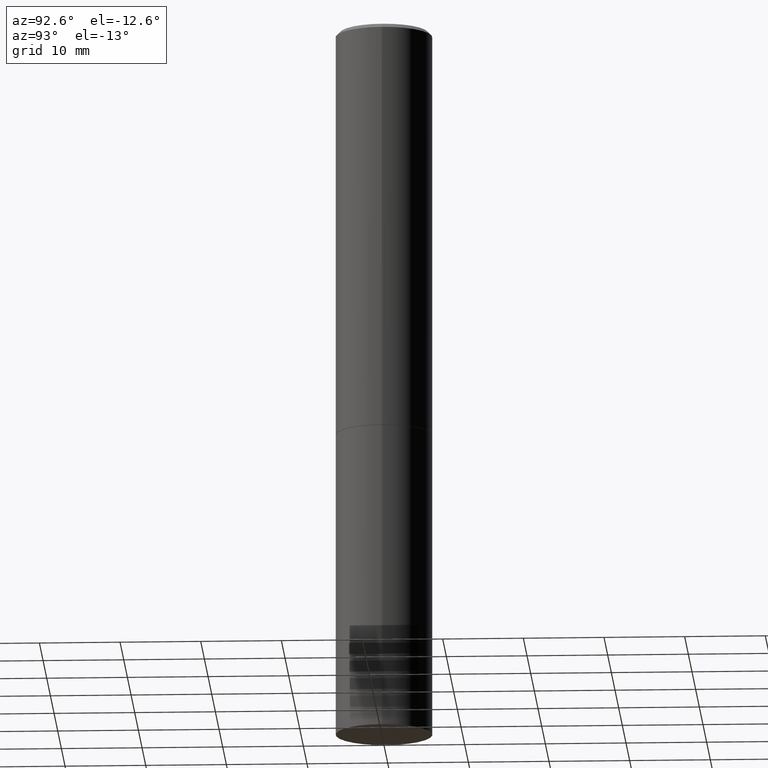
[diagram: clean part render]
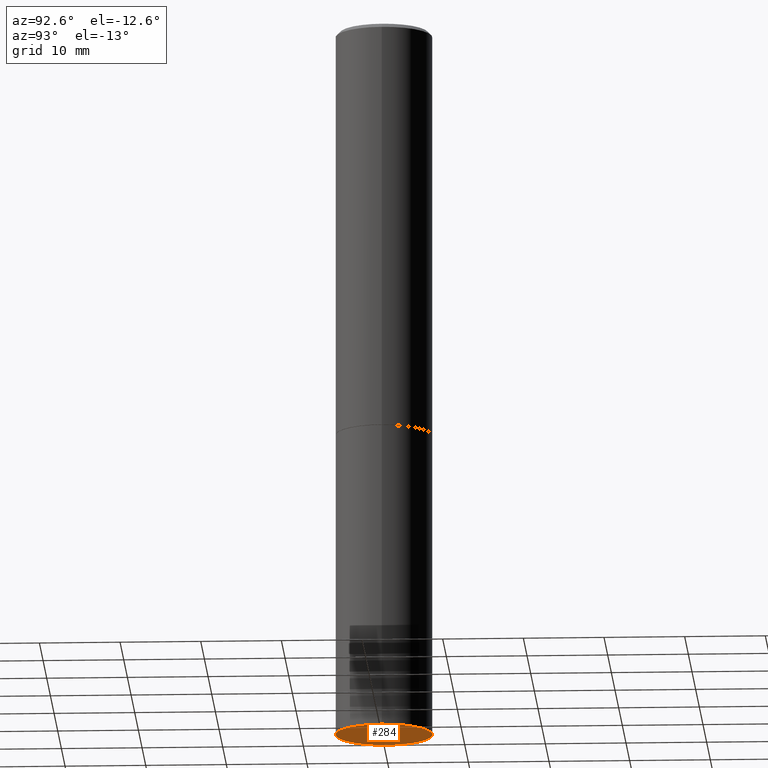
[diagram: same view with one face highlighted and labeled with its STEP entity id]
A machine part, auxiliary view. The second image highlights one B-rep face of the part: STEP entity #284.
In plain terms, the highlighted planar face has unit normal (0, -0, -1).
Its self-contained STEP definition (entity closure, byte-faithful):
#7 = EDGE_CURVE ( 'NONE', #203, #261, #55, .T. ) ;
#12 = DIRECTION ( 'NONE',  ( 1.000000000000000000, -6.982962677686265133E-15, 0.000000000000000000 ) ) ;
#55 = CIRCLE ( 'NONE', #266, 0.2361999999999999933 ) ;
#74 = DIRECTION ( 'NONE',  ( 2.438088387897960049E-29, -3.491481338843145188E-15, -1.000000000000000000 ) ) ;
#97 = EDGE_CURVE ( 'NONE', #261, #203, #352, .T. ) ;
#99 = CARTESIAN_POINT ( 'NONE',  ( 8.568678149992099474E-29, -1.223380146317249786E-14, -3.503899999999999793 ) ) ;
#101 = DIRECTION ( 'NONE',  ( -2.445468806185136597E-29, 3.491481338843145583E-15, 1.000000000000000000 ) ) ;
#126 = CARTESIAN_POINT ( 'NONE',  ( 8.568678149992099474E-29, -1.223380146317249786E-14, -3.503899999999999793 ) ) ;
#130 = DIRECTION ( 'NONE',  ( -1.000000000000000000, 6.982962677686265922E-15, -4.876176775795935793E-29 ) ) ;
#148 = ORIENTED_EDGE ( 'NONE', *, *, #97, .F. ) ;
#161 = CARTESIAN_POINT ( 'NONE',  ( 1.649375784469581525E-15, 0.2361999999999877808, -3.503900000000000681 ) ) ;
#184 = DIRECTION ( 'NONE',  ( -2.445468806185136597E-29, 3.491481338843145583E-15, 1.000000000000000000 ) ) ;
#203 = VERTEX_POINT ( 'NONE', #249 ) ;
#211 = AXIS2_PLACEMENT_3D ( 'NONE', #126, #184, #12 ) ;
#212 = DIRECTION ( 'NONE',  ( 1.000000000000000000, -6.982962677686265133E-15, 0.000000000000000000 ) ) ;
#224 = CARTESIAN_POINT ( 'NONE',  ( -0.2361999999999999933, -7.943696905785525451E-15, -3.503899999999999793 ) ) ;
#233 = ORIENTED_EDGE ( 'NONE', *, *, #7, .F. ) ;
#249 = CARTESIAN_POINT ( 'NONE',  ( 0.2361999999999999933, -1.388317724764199281E-14, -3.503899999999999793 ) ) ;
#261 = VERTEX_POINT ( 'NONE', #224 ) ;
#263 = EDGE_LOOP ( 'NONE', ( #233, #148 ) ) ;
#266 = AXIS2_PLACEMENT_3D ( 'NONE', #99, #101, #212 ) ;
#280 = FACE_OUTER_BOUND ( 'NONE', #263, .T. ) ;
#284 = ADVANCED_FACE ( 'NONE', ( #280 ), #307, .T. ) ;
#307 = PLANE ( 'NONE',  #364 ) ;
#352 = CIRCLE ( 'NONE', #211, 0.2361999999999999933 ) ;
#364 = AXIS2_PLACEMENT_3D ( 'NONE', #161, #74, #130 ) ;